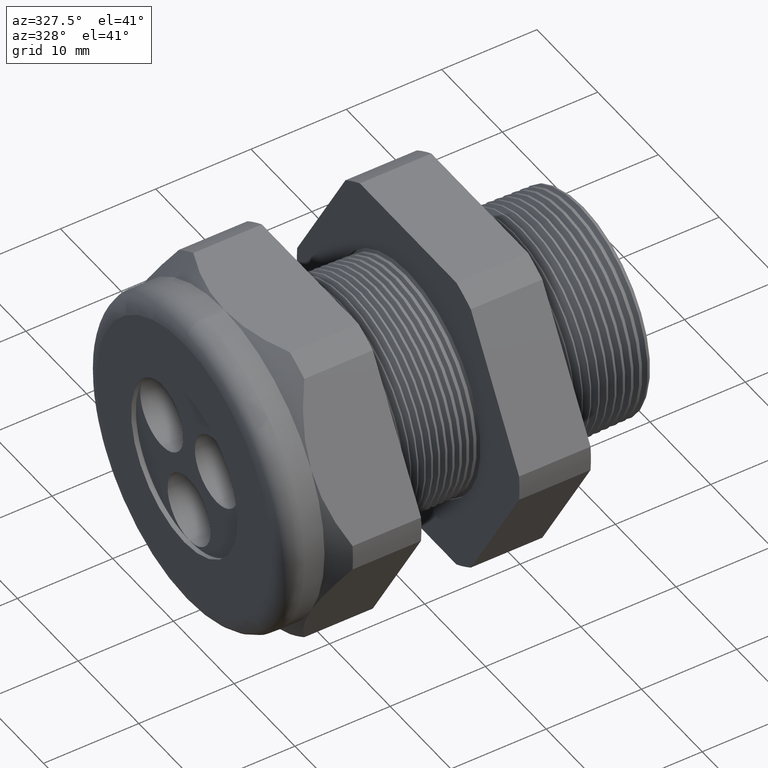
[diagram: clean part render]
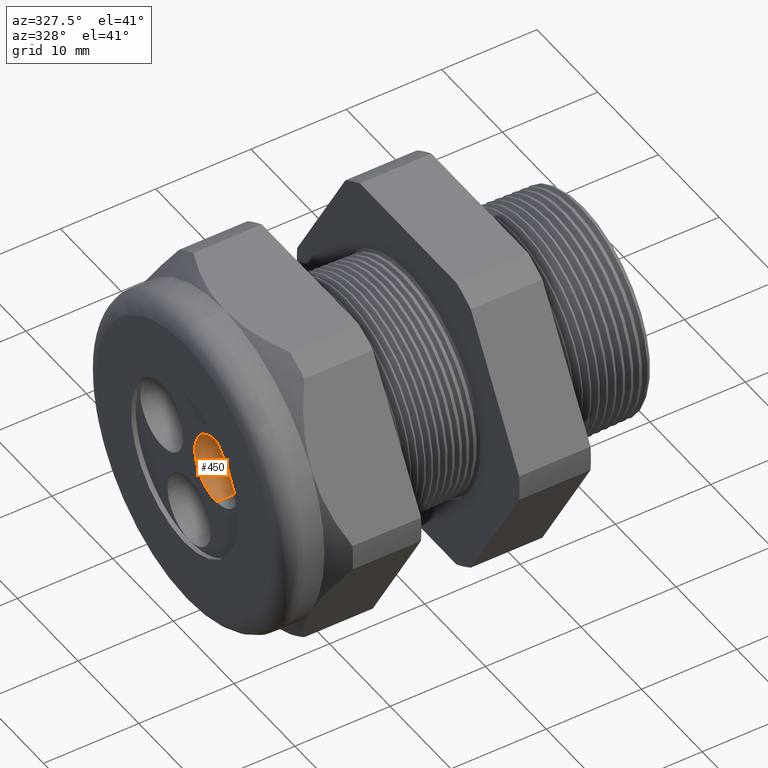
[diagram: same view with one face highlighted and labeled with its STEP entity id]
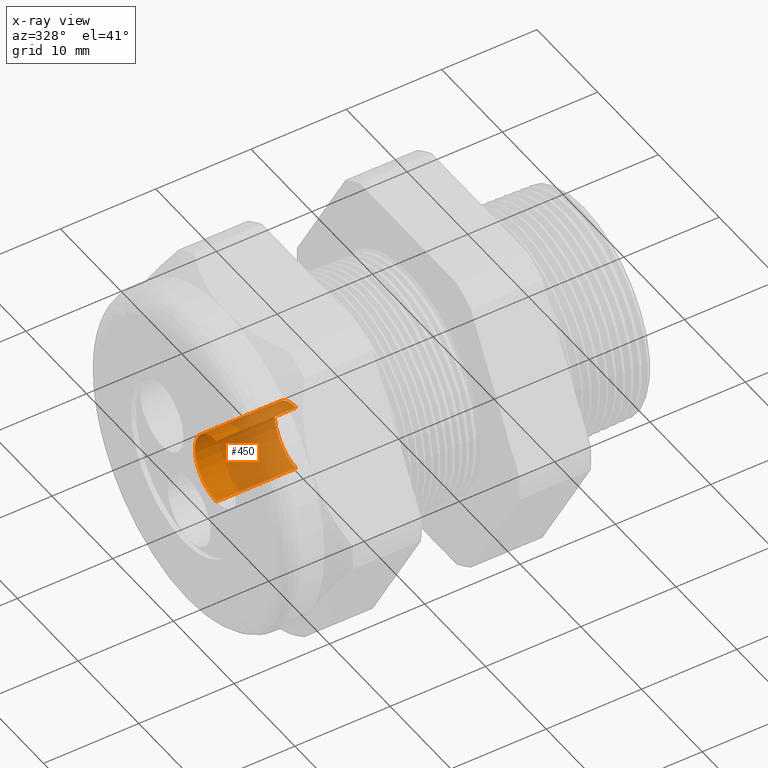
[diagram: x-ray of the same camera — body ghosted, the highlighted face saturated]
A machine part, auxiliary view. The second image highlights one B-rep face of the part: STEP entity #450.
The next image is the same camera in x-ray: the body ghosted, the highlighted face saturated — about 67% of this face is hidden behind the body in this view.
In plain terms, the highlighted cylindrical surface (partial cylindrical patch) has radius 3.556 mm, axis along (-1, 0, 0).
Its self-contained STEP definition (entity closure, byte-faithful):
#332 = EDGE_CURVE ( 'NONE', #377, #365, #2176, .T. ) ;
#363 = EDGE_CURVE ( 'NONE', #376, #364, #2253, .T. ) ;
#364 = VERTEX_POINT ( 'NONE', #2246 ) ;
#365 = VERTEX_POINT ( 'NONE', #2245 ) ;
#376 = VERTEX_POINT ( 'NONE', #2282 ) ;
#377 = VERTEX_POINT ( 'NONE', #2281 ) ;
#426 = EDGE_CURVE ( 'NONE', #377, #376, #2336, .T. ) ;
#435 = ORIENTED_EDGE ( 'NONE', *, *, #332, .T. ) ;
#436 = ORIENTED_EDGE ( 'NONE', *, *, #465, .T. ) ;
#444 = ORIENTED_EDGE ( 'NONE', *, *, #363, .F. ) ;
#445 = ORIENTED_EDGE ( 'NONE', *, *, #426, .F. ) ;
#450 = ADVANCED_FACE ( 'NONE', ( #2371 ), #2370, .F. ) ;
#451 = EDGE_LOOP ( 'NONE', ( #444, #445, #435, #436 ) ) ;
#465 = EDGE_CURVE ( 'NONE', #365, #364, #2398, .T. ) ;
#2173 = DIRECTION ( 'NONE',  ( -1.000000000000000000, 0.0000000000000000000, 0.0000000000000000000 ) ) ;
#2174 = VECTOR ( 'NONE', #2173, 39.37007874015748100 ) ;
#2175 = CARTESIAN_POINT ( 'NONE',  ( -1.179999999999999700, -0.1770502335496901300, 0.2422200000000008200 ) ) ;
#2176 = LINE ( 'NONE', #2175, #2174 ) ;
#2245 = CARTESIAN_POINT ( 'NONE',  ( -1.509999999999999800, -0.1770502335496901300, 0.2422200000000008200 ) ) ;
#2246 = CARTESIAN_POINT ( 'NONE',  ( -1.509999999999999800, -0.1770502335496901000, -0.03777999999999921000 ) ) ;
#2247 = DIRECTION ( 'NONE',  ( -1.000000000000000000, 0.0000000000000000000, 0.0000000000000000000 ) ) ;
#2248 = VECTOR ( 'NONE', #2247, 39.37007874015748100 ) ;
#2249 = CARTESIAN_POINT ( 'NONE',  ( -1.179999999999999700, -0.1770502335496901000, -0.03777999999999921000 ) ) ;
#2253 = LINE ( 'NONE', #2249, #2248 ) ;
#2281 = CARTESIAN_POINT ( 'NONE',  ( -1.179999999999999700, -0.1770502335496901300, 0.2422200000000008200 ) ) ;
#2282 = CARTESIAN_POINT ( 'NONE',  ( -1.179999999999999700, -0.1770502335496901000, -0.03777999999999921000 ) ) ;
#2332 = DIRECTION ( 'NONE',  ( 0.0000000000000000000, 0.8660254037844362700, -0.5000000000000040000 ) ) ;
#2333 = DIRECTION ( 'NONE',  ( -1.000000000000000000, 0.0000000000000000000, 0.0000000000000000000 ) ) ;
#2334 = CARTESIAN_POINT ( 'NONE',  ( -1.179999999999999700, -0.1770502335496901300, 0.1022200000000008000 ) ) ;
#2335 = AXIS2_PLACEMENT_3D ( 'NONE', #2334, #2333, #2332 ) ;
#2336 = CIRCLE ( 'NONE', #2335, 0.1400000000000000400 ) ;
#2366 = DIRECTION ( 'NONE',  ( 0.0000000000000000000, 0.0000000000000000000, 1.000000000000000000 ) ) ;
#2367 = DIRECTION ( 'NONE',  ( -1.000000000000000000, 0.0000000000000000000, 0.0000000000000000000 ) ) ;
#2368 = AXIS2_PLACEMENT_3D ( 'NONE', #2375, #2367, #2366 ) ;
#2370 = CYLINDRICAL_SURFACE ( 'NONE', #2368, 0.1400000000000000100 ) ;
#2371 = FACE_OUTER_BOUND ( 'NONE', #451, .T. ) ;
#2375 = CARTESIAN_POINT ( 'NONE',  ( -1.179999999999999700, -0.1770502335496901300, 0.1022200000000008000 ) ) ;
#2394 = DIRECTION ( 'NONE',  ( 0.0000000000000000000, 0.8660254037844362700, -0.5000000000000040000 ) ) ;
#2395 = DIRECTION ( 'NONE',  ( -1.000000000000000000, 0.0000000000000000000, 0.0000000000000000000 ) ) ;
#2396 = CARTESIAN_POINT ( 'NONE',  ( -1.509999999999999800, -0.1770502335496901300, 0.1022200000000008000 ) ) ;
#2397 = AXIS2_PLACEMENT_3D ( 'NONE', #2396, #2395, #2394 ) ;
#2398 = CIRCLE ( 'NONE', #2397, 0.1400000000000000400 ) ;